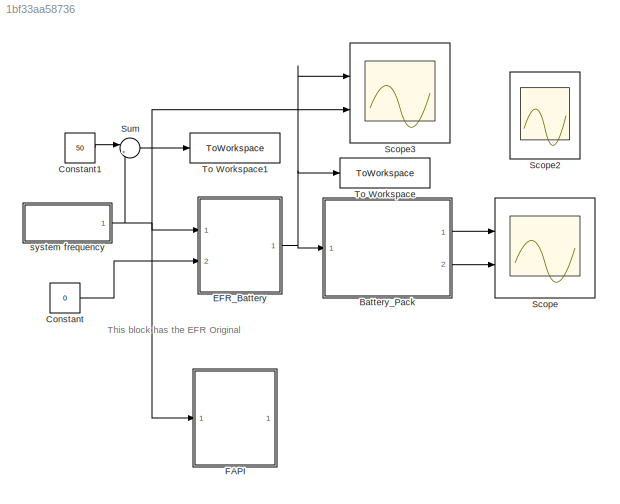
MODEL slx_1bf33aa58736
KIND model
CONFIG AbsTol = auto
CONFIG EnableMultiTasking = off
CONFIG FixedStep = 0.04
CONFIG MaxStep = auto
CONFIG MinStep = auto
CONFIG RelTol = 1e-3
CONFIG SampleTimeConstraint = Unconstrained
CONFIG SolverName = ode4
CONFIG StartTime = 0.0
CONFIG StopTime = 86400
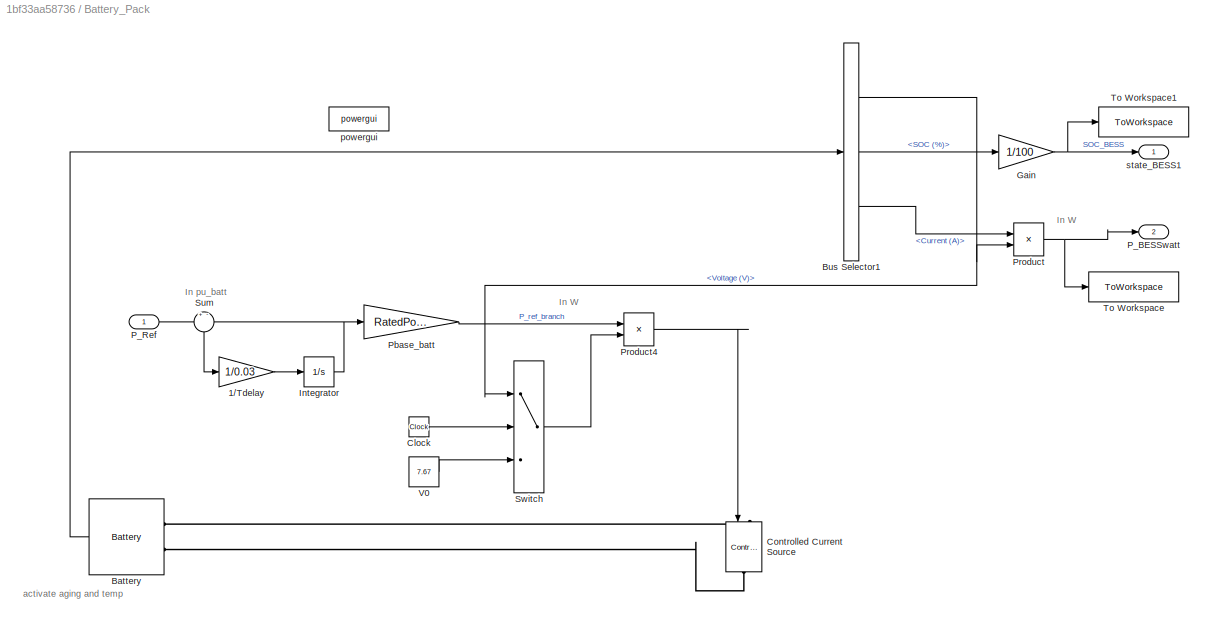
BLOCK [SubSystem] Battery_Pack
  Ports = [1, 2]
  RequestExecContextInheritance = off
BLOCK [Gain] Battery_Pack/1//Tdelay
  Gain = 1/0.03
BLOCK [Reference] Battery_Pack/Battery  REF=spsBatteryLib/Battery
  Ports = [0, 1, 0, 0, 0, 2]
  SourceBlock = spsBatteryLib/Battery
  SourceProductBaseCode = PS
  SourceType = Battery
BLOCK [BusSelector] Battery_Pack/Bus Selector1
  OutputSignals = Voltage (V),SOC (%),Current (A)
  Ports = [1, 3]
BLOCK [Clock] Battery_Pack/Clock
BLOCK [Reference] Battery_Pack/Controlled Current Source  REF=spsControlledCurrentSourceLib/Controlled Current Source
  NameLocation = left
  Ports = [1, 0, 0, 0, 0, 1, 1]
  SourceBlock = spsControlledCurrentSourceLib/Controlled Current Source
  SourceProductBaseCode = PS
  SourceType = Controlled Current Source
BLOCK [Gain] Battery_Pack/Gain
  Gain = 1/100
BLOCK [Integrator] Battery_Pack/Integrator
  Ports = [1, 1]
BLOCK [Outport] Battery_Pack/P_BESSwatt
  Port = 2
  VectorParamsAs1DForOutWhenUnconnected = off
BLOCK [Inport] Battery_Pack/P_Ref
BLOCK [Gain] Battery_Pack/Pbase_batt
  Gain = RatedPower
BLOCK [Product] Battery_Pack/Product
  Ports = [2, 1]
BLOCK [Product] Battery_Pack/Product4
  Inputs = */
  Ports = [2, 1]
BLOCK [Sum] Battery_Pack/Sum
  Inputs = +-
  NameLocation = left
  Ports = [2, 1]
BLOCK [Switch] Battery_Pack/Switch
  Criteria = u2 > Threshold
  InputSameDT = off
  SaturateOnIntegerOverflow = off
BLOCK [ToWorkspace] Battery_Pack/To Workspace
  FixptAsFi = on
  MaxDataPoints = inf
  Ports = [1]
  SampleTime = 1
  VariableName = PowBESS_NOEFR
BLOCK [ToWorkspace] Battery_Pack/To Workspace1
  FixptAsFi = on
  MaxDataPoints = inf
  Ports = [1]
  SampleTime = 1
  VariableName = SOC_NOEFR
BLOCK [Constant] Battery_Pack/V0
  Value = 7.67
BLOCK [Reference] Battery_Pack/powergui  REF=spspowerguiLib/powergui
  Ports = []
  SourceBlock = spspowerguiLib/powergui
  SourceProductBaseCode = PS
  SourceType = PSB option menu block
BLOCK [Outport] Battery_Pack/state_BESS1
  VectorParamsAs1DForOutWhenUnconnected = off
BLOCK [Constant] Constant
  Value = 0
BLOCK [Constant] Constant1
  Value = 50
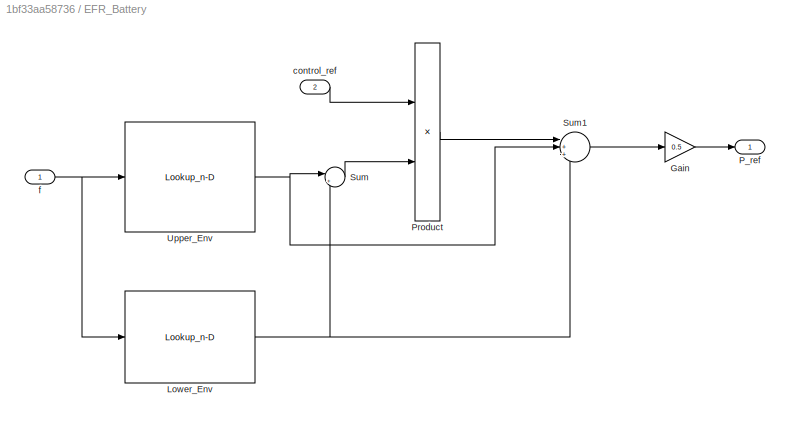
BLOCK [SubSystem] EFR_Battery
  Ports = [2, 1]
  RequestExecContextInheritance = off
BLOCK [Gain] EFR_Battery/Gain
  Gain = 0.5
BLOCK [Lookup_n-D] EFR_Battery/Lower_Env
  BreakpointsForDimension1 = f_serv_low
  ExtrapMethod = Clip
  InputPortMap = u0
  InternalRulePriority = Speed
  NumberOfTableDimensions = 1
  Ports = [1, 1]
  RndMeth = Simplest
  Table = P_serv_low
  UseLastTableValue = on
BLOCK [Outport] EFR_Battery/P_ref
  VectorParamsAs1DForOutWhenUnconnected = off
BLOCK [Product] EFR_Battery/Product
  Ports = [2, 1]
BLOCK [Sum] EFR_Battery/Sum
  Inputs = |+-
  Ports = [2, 1]
BLOCK [Sum] EFR_Battery/Sum1
  Inputs = |+++
  Ports = [3, 1]
BLOCK [Lookup_n-D] EFR_Battery/Upper_Env
  BreakpointsForDimension1 = f_serv_upp
  ExtrapMethod = Clip
  InputPortMap = u0
  InternalRulePriority = Speed
  NumberOfTableDimensions = 1
  Ports = [1, 1]
  RndMeth = Simplest
  Table = P_serv_upp
  UseLastTableValue = on
BLOCK [Inport] EFR_Battery/control_ref
  NameLocation = top
  Port = 2
  SampleTime = 10
BLOCK [Inport] EFR_Battery/f
  NameLocation = top
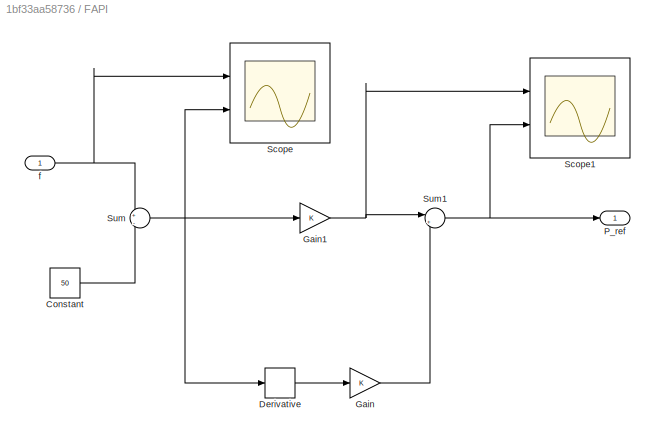
BLOCK [SubSystem] FAPI
  Commented = on
  Ports = [1, 1]
  RequestExecContextInheritance = off
BLOCK [Constant] FAPI/Constant
  Value = 50
BLOCK [Derivative] FAPI/Derivative
BLOCK [Gain] FAPI/Gain
BLOCK [Gain] FAPI/Gain1
BLOCK [Outport] FAPI/P_ref
  VectorParamsAs1DForOutWhenUnconnected = off
BLOCK [Scope] FAPI/Scope
  Floating = off
  NumInputPorts = 2
  Ports = [2]
  ScopeSpecificationString = Simulink.scopes.TimeScopeBlockCfg('CurrentConfiguration', extmgr.ConfigurationSet(extmgr.Configuration('Core','General UI',true),extmgr.Configuration('Core','Source UI',true),extmgr.Configuration('Sources','WiredSimulink',true,'DataLoggingVariableName','ScopeData1'),extmgr.Configuration('Visuals','Time Domain',true,'SerializedDisplays',{struct('MinYLimReal','49.76438','MaxYLimReal','50.26063','YLa...<+1971ch>
BLOCK [Scope] FAPI/Scope1
  Floating = off
  NumInputPorts = 2
  Ports = [2]
  ScopeSpecificationString = Simulink.scopes.TimeScopeBlockCfg('CurrentConfiguration', extmgr.ConfigurationSet(extmgr.Configuration('Core','General UI',true),extmgr.Configuration('Core','Source UI',true),extmgr.Configuration('Sources','WiredSimulink',true,'DataLoggingVariableName','ScopeData2'),extmgr.Configuration('Visuals','Time Domain',true,'SerializedDisplays',{struct('MinYLimReal','-0.1315','MaxYLimReal','0.1635','YLabel...<+1995ch>
BLOCK [Sum] FAPI/Sum
  Inputs = +|-
  Ports = [2, 1]
BLOCK [Sum] FAPI/Sum1
  Inputs = |+-
  Ports = [2, 1]
BLOCK [Inport] FAPI/f
  NameLocation = top
BLOCK [Scope] Scope
  Floating = off
  NumInputPorts = 2
  Ports = [2]
  ScopeSpecificationString = Simulink.scopes.TimeScopeBlockCfg('CurrentConfiguration', extmgr.ConfigurationSet(extmgr.Configuration('Core','General UI',true),extmgr.Configuration('Core','Source UI',true),extmgr.Configuration('Sources','WiredSimulink',true),extmgr.Configuration('Visuals','Time Domain',true,'SerializedDisplays',{struct('MinYLimReal','0.34895','MaxYLimReal','0.699','YLabelReal','','MinYLimMag','0.34895','MaxYLim...<+2015ch>
BLOCK [Scope] Scope2
  Floating = off
  NumInputPorts = 2
  Ports = [2]
  ScopeSpecificationString = Simulink.scopes.TimeScopeBlockCfg('CurrentConfiguration', extmgr.ConfigurationSet(extmgr.Configuration('Core','General UI',true),extmgr.Configuration('Core','Source UI',true),extmgr.Configuration('Sources','WiredSimulink',true,'DataLoggingVariableName','ScopeData1'),extmgr.Configuration('Visuals','Time Domain',true,'SerializedDisplays',{struct('MinYLimReal','-377.60013','MaxYLimReal','3897.33113',...<+2042ch>
BLOCK [Scope] Scope3
  Floating = off
  NumInputPorts = 2
  Ports = [2]
  ScopeSpecificationString = Simulink.scopes.TimeScopeBlockCfg('CurrentConfiguration', extmgr.ConfigurationSet(extmgr.Configuration('Core','General UI',true),extmgr.Configuration('Core','Source UI',true),extmgr.Configuration('Sources','WiredSimulink',true,'DataLoggingVariableName','ScopeData1'),extmgr.Configuration('Visuals','Time Domain',true,'SerializedDisplays',{struct('MinYLimReal','-0.38444','MaxYLimReal','0.30444','YLab...<+2042ch>
BLOCK [Sum] Sum
  Inputs = |+-
  Ports = [2, 1]
BLOCK [ToWorkspace] To Workspace
  FixptAsFi = on
  MaxDataPoints = inf
  Ports = [1]
  SampleTime = 1
  VariableName = Control
BLOCK [ToWorkspace] To Workspace1
  FixptAsFi = on
  MaxDataPoints = inf
  Ports = [1]
  SampleTime = 1
  VariableName = deltaFreq
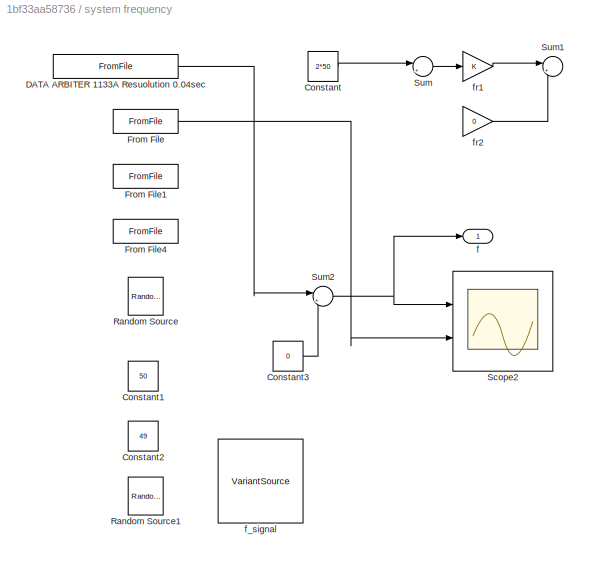
BLOCK [SubSystem] system frequency
  Ports = [0, 1]
  RequestExecContextInheritance = off
BLOCK [Constant] system frequency/Constant
  Commented = on
  Value = 2*50
BLOCK [Constant] system frequency/Constant1
  Commented = on
  Value = 50
BLOCK [Constant] system frequency/Constant2
  Commented = on
  Value = 49
BLOCK [Constant] system frequency/Constant3
  Value = 0
BLOCK [FromFile] system frequency/DATA ARBITER 1133A Resuolution 0.04sec 
  FileName = f_data_2021_07_3.mat
BLOCK [FromFile] system frequency/From File
  Commented = on
  FileName = f_data_1.mat
  SampleTime = [1,0]
BLOCK [FromFile] system frequency/From File1
  Commented = on
  FileName = f_data_2_AM.mat
  SampleTime = [1,0]
BLOCK [FromFile] system frequency/From File4
  Commented = on
  FileName = f_data_2_PM.mat
  SampleTime = [1,0]
BLOCK [Reference] system frequency/Random Source  REF=dspsrcs4/Random
Source
  Commented = on
  Ports = [0, 1]
  SourceBlock = dspsrcs4/Random\nSource
  SourceProductBaseCode = DS
  SourceType = Random Source
  UserDataPersistent = on
BLOCK [Reference] system frequency/Random Source1  REF=dspsrcs4/Random
Source
  Commented = on
  Ports = [0, 1]
  SourceBlock = dspsrcs4/Random\nSource
  SourceProductBaseCode = DS
  SourceType = Random Source
  UserDataPersistent = on
BLOCK [Scope] system frequency/Scope2
  Floating = off
  NumInputPorts = 2
  Ports = [2]
  ScopeSpecificationString = Simulink.scopes.TimeScopeBlockCfg('CurrentConfiguration', extmgr.ConfigurationSet(extmgr.Configuration('Core','General UI',true),extmgr.Configuration('Core','Source UI',true),extmgr.Configuration('Sources','WiredSimulink',true,'DataLoggingVariableName','ScopeData2'),extmgr.Configuration('Visuals','Time Domain',true,'SerializedDisplays',{struct('MinYLimReal','49.70162','MaxYLimReal','50.18538','YLa...<+2026ch>
BLOCK [Sum] system frequency/Sum
  Commented = on
  Inputs = |+-
  Ports = [2, 1]
BLOCK [Sum] system frequency/Sum1
  Commented = on
  Inputs = |++
  Ports = [2, 1]
BLOCK [Sum] system frequency/Sum2
  Inputs = |++
  Ports = [2, 1]
BLOCK [Outport] system frequency/f
BLOCK [VariantSource] system frequency/f_signal
  Commented = on
  LabelModeActiveChoice = 2
  Ports = [3, 1]
  ShowConditionOnBlock = on
  VariantControlMode = label
BLOCK [Gain] system frequency/fr1
  Commented = on
BLOCK [Gain] system frequency/fr2
  Commented = on
  Gain = 0
ANNOTATION (root): This block has the EFR Original
ANNOTATION Battery_Pack: In W
ANNOTATION Battery_Pack: In pu_batt
ANNOTATION Battery_Pack: activate aging and temp
LINE Battery_Pack/1//Tdelay:1 -> Battery_Pack/Integrator:1
LINE Battery_Pack/Battery:1 -> Battery_Pack/Bus Selector1:1
NET Battery_Pack/Bus Selector1:1 -> Battery_Pack/Product:2, Battery_Pack/Switch:1
LINE Battery_Pack/Bus Selector1:2 -> Battery_Pack/Gain:1
LINE Battery_Pack/Bus Selector1:3 -> Battery_Pack/Product:1
LINE Battery_Pack/Clock:1 -> Battery_Pack/Switch:2
NET Battery_Pack/Gain:1 -> Battery_Pack/To Workspace1:1, Battery_Pack/state_BESS1:1
NET Battery_Pack/Integrator:1 -> Battery_Pack/Pbase_batt:1, Battery_Pack/Sum:2
LINE Battery_Pack/P_Ref:1 -> Battery_Pack/Sum:1
LINE Battery_Pack/Pbase_batt:1 -> Battery_Pack/Product4:1
LINE Battery_Pack/Product4:1 -> Battery_Pack/Controlled Current Source:1
NET Battery_Pack/Product:1 -> Battery_Pack/P_BESSwatt:1, Battery_Pack/To Workspace:1
LINE Battery_Pack/Sum:1 -> Battery_Pack/1//Tdelay:1
LINE Battery_Pack/Switch:1 -> Battery_Pack/Product4:2
LINE Battery_Pack/V0:1 -> Battery_Pack/Switch:3
LINE Battery_Pack:1 -> Scope:1
LINE Battery_Pack:2 -> Scope:2
LINE Constant1:1 -> Sum:1
LINE Constant:1 -> EFR_Battery:2
LINE EFR_Battery/Gain:1 -> EFR_Battery/P_ref:1
NET EFR_Battery/Lower_Env:1 -> EFR_Battery/Sum1:3, EFR_Battery/Sum:2
LINE EFR_Battery/Product:1 -> EFR_Battery/Sum1:1
LINE EFR_Battery/Sum1:1 -> EFR_Battery/Gain:1
LINE EFR_Battery/Sum:1 -> EFR_Battery/Product:2
NET EFR_Battery/Upper_Env:1 -> EFR_Battery/Sum1:2, EFR_Battery/Sum:1
LINE EFR_Battery/control_ref:1 -> EFR_Battery/Product:1
NET EFR_Battery/f:1 -> EFR_Battery/Lower_Env:1, EFR_Battery/Upper_Env:1
NET EFR_Battery:1 -> Battery_Pack:1, Scope3:1, To Workspace:1
LINE FAPI/Constant:1 -> FAPI/Sum:2
LINE FAPI/Derivative:1 -> FAPI/Gain:1
NET FAPI/Gain1:1 -> FAPI/Scope1:1, FAPI/Sum1:1
LINE FAPI/Gain:1 -> FAPI/Sum1:2
NET FAPI/Sum1:1 -> FAPI/P_ref:1, FAPI/Scope1:2
NET FAPI/Sum:1 -> FAPI/Derivative:1, FAPI/Gain1:1, FAPI/Scope:2
NET FAPI/f:1 -> FAPI/Scope:1, FAPI/Sum:1
LINE Sum:1 -> To Workspace1:1
LINE system frequency/Constant3:1 -> system frequency/Sum2:2
LINE system frequency/Constant:1 -> system frequency/Sum:1
LINE system frequency/DATA ARBITER 1133A Resuolution 0.04sec :1 -> system frequency/Sum2:1
LINE system frequency/From File:1 -> system frequency/Scope2:2
NET system frequency/Sum2:1 -> system frequency/Scope2:1, system frequency/f:1
LINE system frequency/Sum:1 -> system frequency/fr1:1
LINE system frequency/fr1:1 -> system frequency/Sum1:1
LINE system frequency/fr2:1 -> system frequency/Sum1:2
NET system frequency:1 -> EFR_Battery:1, FAPI:1, Scope3:2, Sum:2
PLINE Battery_Pack/Battery:LConn1 -- Battery_Pack/Controlled Current Source:LConn1
PLINE Battery_Pack/Battery:LConn2 -- Battery_Pack/Controlled Current Source:RConn1
note: NET lines group one-source signal fan-out (src -> all destinations, sorted); 1:1 wires keep LINE
